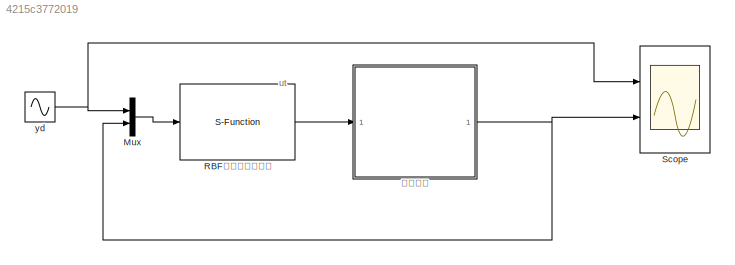
MODEL slx_4215c3772019
KIND model
CONFIG AbsTol = auto
CONFIG EnableMultiTasking = on
CONFIG FixedStep = 0.001
CONFIG MaxStep = auto
CONFIG MinStep = auto
CONFIG RelTol = 1e-3
CONFIG SampleTimeConstraint = Unconstrained
CONFIG Solver = FixedStepAuto
CONFIG SolverName = FixedStepAuto
CONFIG StartTime = 0
CONFIG StopTime = 100
BLOCK [Mux] Mux
  DisplayOption = bar
  Inputs = 2
  Ports = [2, 1]
BLOCK [S-Function] RBF神经网络控制器
  EnableBusSupport = off
  FunctionName = Book331_Controller
  Ports = [1, 1]
  SFcnIsStateOwnerBlock = off
  SFunctionDeploymentMode = off
BLOCK [Scope] Scope
  Floating = off
  NumInputPorts = 2
  Ports = [2]
  ScopeSpecificationString = Simulink.scopes.TimeScopeBlockCfg('CurrentConfiguration', extmgr.ConfigurationSet(extmgr.Configuration('Core','General UI',true,'FigureColor',[1 1 1]),extmgr.Configuration('Core','Source UI',true),extmgr.Configuration('Sources','WiredSimulink',true),extmgr.Configuration('Visuals','Time Domain',true,'SerializedDisplays',{struct('MinYLimReal','-17.67924','MaxYLimReal','9.14477','YLabelReal','','MinY...<+1519ch>
BLOCK [Sin] yd
  Amplitude = 2
  Frequency = 0.1*pi
  Ports = [0, 1]
  SampleTime = 0
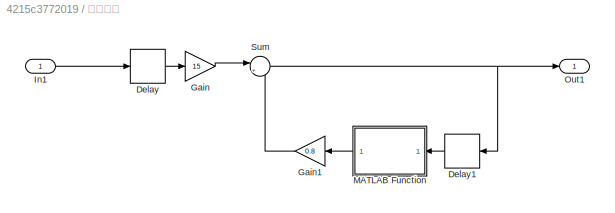
BLOCK [SubSystem] 参考模型
  Ports = [1, 1]
  RequestExecContextInheritance = off
BLOCK [Delay] 参考模型/Delay
  DelayLength = 1
  InitialCondition = 0
  InputPortMap = u0
  Ports = [1, 1]
BLOCK [Delay] 参考模型/Delay1
  DelayLength = 1
  InitialCondition = 0
  InputPortMap = u0
  Ports = [1, 1]
BLOCK [Gain] 参考模型/Gain
  Gain = 15
  OutDataTypeStr = Inherit: Inherit via internal rule
  ParamDataTypeStr = Inherit: Inherit via internal rule
  SaturateOnIntegerOverflow = off
BLOCK [Gain] 参考模型/Gain1
  Gain = 0.8
  OutDataTypeStr = Inherit: Inherit via internal rule
  ParamDataTypeStr = Inherit: Inherit via internal rule
  SaturateOnIntegerOverflow = off
BLOCK [Inport] 参考模型/In1
  IconDisplay = Port number
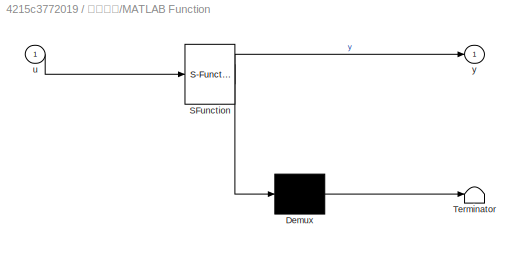
BLOCK [SubSystem] 参考模型/MATLAB Function
  ErrorFcn = Stateflow.Translate.translate
  PermitHierarchicalResolution = ExplicitOnly
  Ports = [1, 1]
  RequestExecContextInheritance = off
  SFBlockType = MATLAB Function
  TreatAsAtomicUnit = on
BLOCK [Demux] 参考模型/MATLAB Function/ Demux 
  Outputs = 1
  Ports = [1, 1]
BLOCK [S-Function] 参考模型/MATLAB Function/ SFunction 
  EnableBusSupport = on
  FunctionName = sf_sfun
  PortCounts = [1 2]
  Ports = [1, 2]
  SFcnIsStateOwnerBlock = off
  SFunctionDeploymentMode = off
  Tag = Stateflow S-Function 1
BLOCK [Terminator] 参考模型/MATLAB Function/ Terminator 
BLOCK [Inport] 参考模型/MATLAB Function/u
  IconDisplay = Port number
BLOCK [Outport] 参考模型/MATLAB Function/y
  IconDisplay = Port number
BLOCK [Outport] 参考模型/Out1
  IconDisplay = Port number
BLOCK [Sum] 参考模型/Sum
  IconShape = round
  InputSameDT = off
  Inputs = |++
  OutDataTypeStr = Inherit: Inherit via internal rule
  Ports = [2, 1]
  SaturateOnIntegerOverflow = off
ANNOTATION (root): ut
LINE Mux:1 -> RBF神经网络控制器:1
LINE RBF神经网络控制器:1 -> 参考模型:1
NET yd:1 -> Mux:1, Scope:1
LINE 参考模型/Delay1:1 -> 参考模型/MATLAB Function:1
LINE 参考模型/Delay:1 -> 参考模型/Gain:1
LINE 参考模型/Gain1:1 -> 参考模型/Sum:2
LINE 参考模型/Gain:1 -> 参考模型/Sum:1
LINE 参考模型/In1:1 -> 参考模型/Delay:1
LINE 参考模型/MATLAB Function:1 -> 参考模型/Gain1:1
NET 参考模型/Sum:1 -> 参考模型/Delay1:1, 参考模型/Out1:1
NET 参考模型:1 -> Mux:2, Scope:2
note: NET lines group one-source signal fan-out (src -> all destinations, sorted); 1:1 wires keep LINE
CHART 参考模型/MATLAB Function states=1 transitions=1
  STATE_LABEL 'eML_blk_kernel()'
  STATE_LABEL 'SCRIPT:\nfunction y = fcn(u)\n%#codegen\n\ny = sin(u);'
